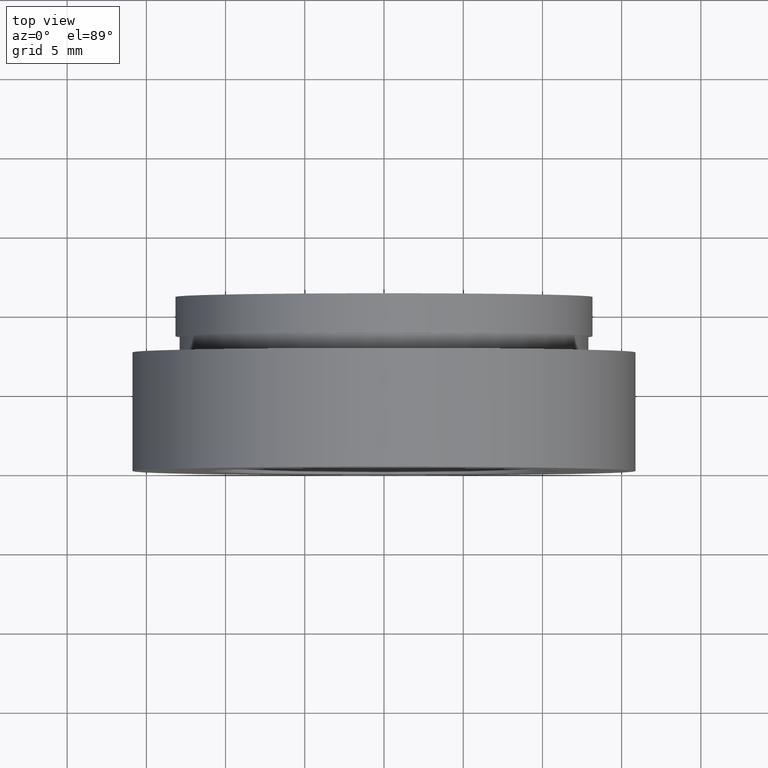
[diagram: clean part render]
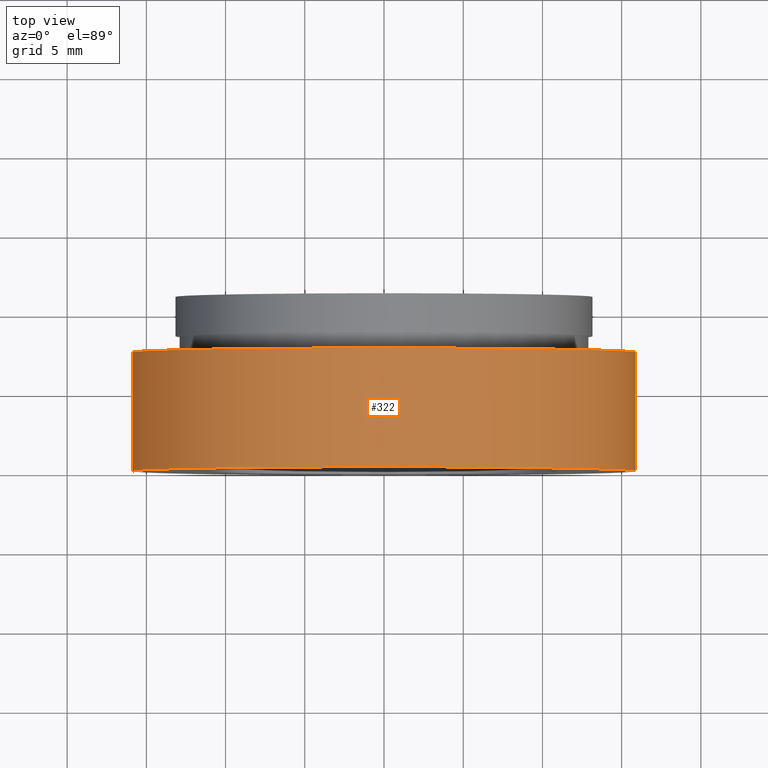
[diagram: same view with one face highlighted and labeled with its STEP entity id]
A machine part, top view. The second image highlights one B-rep face of the part: STEP entity #322.
In plain terms, the highlighted cylindrical surface (partial cylindrical patch) has radius 15.875 mm, axis along (-0, 1, -0).
Its self-contained STEP definition (entity closure, byte-faithful):
#4 = CARTESIAN_POINT ( 'NONE',  ( 2.067940818438636500E-015, -3.469446951953614200E-015, 0.0000000000000000000 ) ) ;
#16 = AXIS2_PLACEMENT_3D ( 'NONE', #4, #175, #98 ) ;
#42 = CIRCLE ( 'NONE', #16, 15.87499999999999600 ) ;
#69 = DIRECTION ( 'NONE',  ( -1.224646799147351000E-016, 1.000000000000000000, -0.0000000000000000000 ) ) ;
#93 = VERTEX_POINT ( 'NONE', #479 ) ;
#98 = DIRECTION ( 'NONE',  ( -1.000000000000000000, -1.224646799147350700E-016, 0.0000000000000000000 ) ) ;
#124 = ORIENTED_EDGE ( 'NONE', *, *, #211, .F. ) ;
#134 = CARTESIAN_POINT ( 'NONE',  ( -15.87499999999999300, -5.413573745600033100E-015, 0.0000000000000000000 ) ) ;
#146 = CARTESIAN_POINT ( 'NONE',  ( 1.149455719078122700E-015, 7.499999999999998200, 0.0000000000000000000 ) ) ;
#170 = VERTEX_POINT ( 'NONE', #390 ) ;
#175 = DIRECTION ( 'NONE',  ( -1.224646799147351000E-016, 1.000000000000000000, -0.0000000000000000000 ) ) ;
#195 = DIRECTION ( 'NONE',  ( -1.000000000000000000, -1.092739197465705300E-016, 0.0000000000000000000 ) ) ;
#198 = CIRCLE ( 'NONE', #327, 15.87500000000000000 ) ;
#201 = VERTEX_POINT ( 'NONE', #134 ) ;
#204 = EDGE_CURVE ( 'NONE', #170, #93, #528, .T. ) ;
#211 = EDGE_CURVE ( 'NONE', #419, #93, #198, .T. ) ;
#260 = CARTESIAN_POINT ( 'NONE',  ( -15.87500000000000000, 16.88601823708207300, 0.0000000000000000000 ) ) ;
#266 = DIRECTION ( 'NONE',  ( -1.224646799147351000E-016, 1.000000000000000000, -0.0000000000000000000 ) ) ;
#285 = EDGE_LOOP ( 'NONE', ( #286, #443, #124, #524 ) ) ;
#286 = ORIENTED_EDGE ( 'NONE', *, *, #325, .T. ) ;
#294 = CARTESIAN_POINT ( 'NONE',  ( 15.87500000000000000, 16.88601823708208000, 1.944126793646423200E-015 ) ) ;
#302 = AXIS2_PLACEMENT_3D ( 'NONE', #445, #69, #315 ) ;
#306 = DIRECTION ( 'NONE',  ( -1.224646799147351000E-016, 1.000000000000000000, -0.0000000000000000000 ) ) ;
#315 = DIRECTION ( 'NONE',  ( -1.000000000000000000, -2.185478394931410600E-016, 0.0000000000000000000 ) ) ;
#322 = ADVANCED_FACE ( 'NONE', ( #415 ), #362, .T. ) ;
#325 = EDGE_CURVE ( 'NONE', #201, #170, #42, .T. ) ;
#327 = AXIS2_PLACEMENT_3D ( 'NONE', #146, #306, #195 ) ;
#362 = CYLINDRICAL_SURFACE ( 'NONE', #302, 15.87500000000000000 ) ;
#385 = VECTOR ( 'NONE', #266, 1000.000000000000000 ) ;
#390 = CARTESIAN_POINT ( 'NONE',  ( 15.87500000000000000, -1.525320158307194900E-015, 1.944126793646423200E-015 ) ) ;
#415 = FACE_OUTER_BOUND ( 'NONE', #285, .T. ) ;
#419 = VERTEX_POINT ( 'NONE', #534 ) ;
#429 = LINE ( 'NONE', #260, #385 ) ;
#441 = VECTOR ( 'NONE', #472, 1000.000000000000000 ) ;
#443 = ORIENTED_EDGE ( 'NONE', *, *, #204, .T. ) ;
#445 = CARTESIAN_POINT ( 'NONE',  ( 0.0000000000000000000, 16.88601823708207700, 0.0000000000000000000 ) ) ;
#472 = DIRECTION ( 'NONE',  ( -1.224646799147351000E-016, 1.000000000000000000, -0.0000000000000000000 ) ) ;
#479 = CARTESIAN_POINT ( 'NONE',  ( 15.87500000000000000, 7.500000000000000000, 1.944126793646423200E-015 ) ) ;
#515 = EDGE_CURVE ( 'NONE', #201, #419, #429, .T. ) ;
#524 = ORIENTED_EDGE ( 'NONE', *, *, #515, .F. ) ;
#528 = LINE ( 'NONE', #294, #441 ) ;
#534 = CARTESIAN_POINT ( 'NONE',  ( -15.87500000000000000, 7.499999999999996400, 0.0000000000000000000 ) ) ;